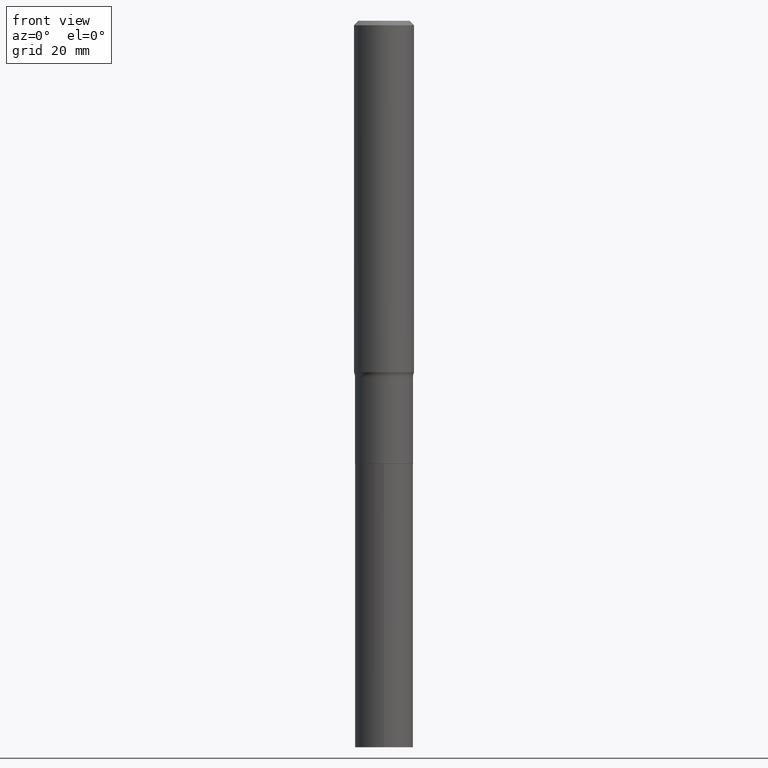
[diagram: clean part render]
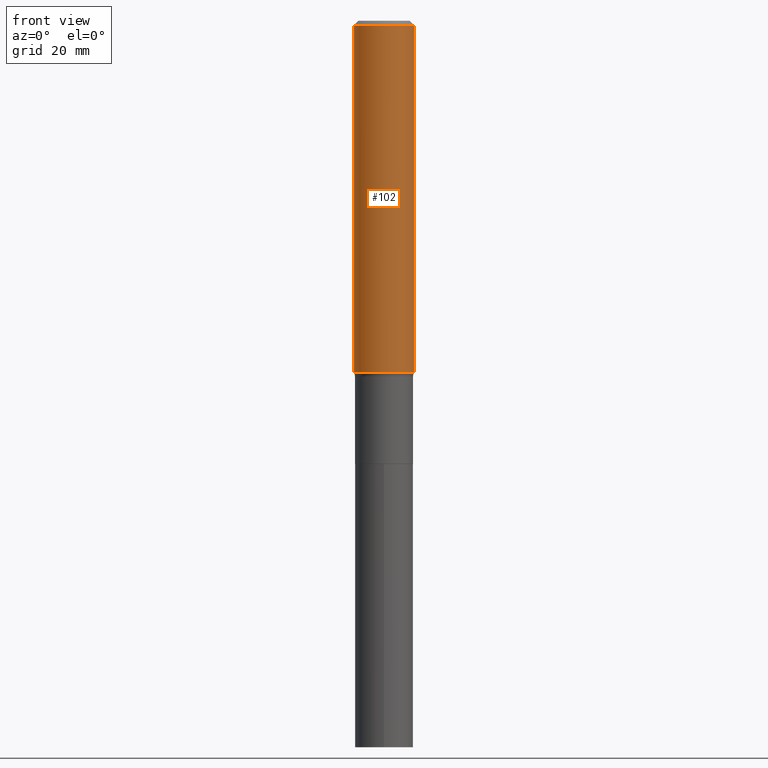
[diagram: same view with one face highlighted and labeled with its STEP entity id]
A machine part, front view. The second image highlights one B-rep face of the part: STEP entity #102.
In plain terms, the highlighted cylindrical surface (edge-blend (fillet) strip) has radius 5.9995 mm, axis along (-0, 0, 1).
Its self-contained STEP definition (entity closure, byte-faithful):
#1 = CARTESIAN_POINT ( 'NONE',  ( 0.000000000000000000, 0.000000000000000000, 0.000000000000000000 ) ) ;
#6 = CARTESIAN_POINT ( 'NONE',  ( 6.753505043533784872E-29, -9.642215337870128381E-15, -2.761640232929024830 ) ) ;
#15 = VECTOR ( 'NONE', #250, 39.37007874015748143 ) ;
#30 = CARTESIAN_POINT ( 'NONE',  ( 0.2362000000000002153, -1.649375784469497708E-15, 1.151752954443001069E-29 ) ) ;
#50 = AXIS2_PLACEMENT_3D ( 'NONE', #1, #393, #460 ) ;
#57 = EDGE_CURVE ( 'NONE', #370, #180, #324, .T. ) ;
#102 = ADVANCED_FACE ( 'NONE', ( #183 ), #191, .T. ) ;
#120 = ORIENTED_EDGE ( 'NONE', *, *, #57, .T. ) ;
#160 = DIRECTION ( 'NONE',  ( -2.445468806185136597E-29, 3.491481338843145583E-15, 1.000000000000000000 ) ) ;
#167 = DIRECTION ( 'NONE',  ( 1.000000000000000000, -6.982962677686269077E-15, 0.000000000000000000 ) ) ;
#170 = CARTESIAN_POINT ( 'NONE',  ( -0.2362000000000003264, -7.963913396004768831E-15, -2.761640232929024830 ) ) ;
#171 = EDGE_CURVE ( 'NONE', #315, #180, #229, .T. ) ;
#175 = LINE ( 'NONE', #409, #15 ) ;
#180 = VERTEX_POINT ( 'NONE', #438 ) ;
#183 = FACE_OUTER_BOUND ( 'NONE', #210, .T. ) ;
#191 = CYLINDRICAL_SURFACE ( 'NONE', #50, 0.2362000000000002153 ) ;
#210 = EDGE_LOOP ( 'NONE', ( #337, #383, #120, #264 ) ) ;
#229 = CIRCLE ( 'NONE', #294, 0.2361999999999999933 ) ;
#232 = CARTESIAN_POINT ( 'NONE',  ( -0.2361999999999999933, -3.204657318987311234E-15, -0.03543000000000023908 ) ) ;
#250 = DIRECTION ( 'NONE',  ( -2.445468806185136877E-29, 3.491481338843145188E-15, 1.000000000000000000 ) ) ;
#264 = ORIENTED_EDGE ( 'NONE', *, *, #171, .F. ) ;
#272 = EDGE_CURVE ( 'NONE', #364, #370, #343, .T. ) ;
#291 = DIRECTION ( 'NONE',  ( -2.445468806185136877E-29, 3.491481338843145188E-15, 1.000000000000000000 ) ) ;
#294 = AXIS2_PLACEMENT_3D ( 'NONE', #401, #399, #304 ) ;
#304 = DIRECTION ( 'NONE',  ( 1.000000000000000000, -6.982962677686266711E-15, 0.000000000000000000 ) ) ;
#315 = VERTEX_POINT ( 'NONE', #232 ) ;
#324 = LINE ( 'NONE', #30, #402 ) ;
#337 = ORIENTED_EDGE ( 'NONE', *, *, #454, .F. ) ;
#343 = CIRCLE ( 'NONE', #421, 0.2362000000000003819 ) ;
#364 = VERTEX_POINT ( 'NONE', #170 ) ;
#370 = VERTEX_POINT ( 'NONE', #447 ) ;
#383 = ORIENTED_EDGE ( 'NONE', *, *, #272, .T. ) ;
#393 = DIRECTION ( 'NONE',  ( -2.445468806185136597E-29, 3.491481338843145583E-15, 1.000000000000000000 ) ) ;
#399 = DIRECTION ( 'NONE',  ( -2.445468806185136597E-29, 3.491481338843145583E-15, 1.000000000000000000 ) ) ;
#401 = CARTESIAN_POINT ( 'NONE',  ( 8.664295980313998742E-31, -1.237031838352134818E-16, -0.03543000000000023908 ) ) ;
#402 = VECTOR ( 'NONE', #291, 39.37007874015748143 ) ;
#409 = CARTESIAN_POINT ( 'NONE',  ( -0.2362000000000002153, 1.678301941865358169E-15, -1.161852468318209878E-29 ) ) ;
#421 = AXIS2_PLACEMENT_3D ( 'NONE', #6, #160, #167 ) ;
#438 = CARTESIAN_POINT ( 'NONE',  ( 0.2361999999999999933, -1.773078968304709711E-15, -0.03543000000000023908 ) ) ;
#447 = CARTESIAN_POINT ( 'NONE',  ( 0.2362000000000003264, -1.129159112233962806E-14, -2.761640232929024830 ) ) ;
#454 = EDGE_CURVE ( 'NONE', #364, #315, #175, .T. ) ;
#460 = DIRECTION ( 'NONE',  ( 1.000000000000000000, -6.982962677686266711E-15, 4.876176775795935793E-29 ) ) ;